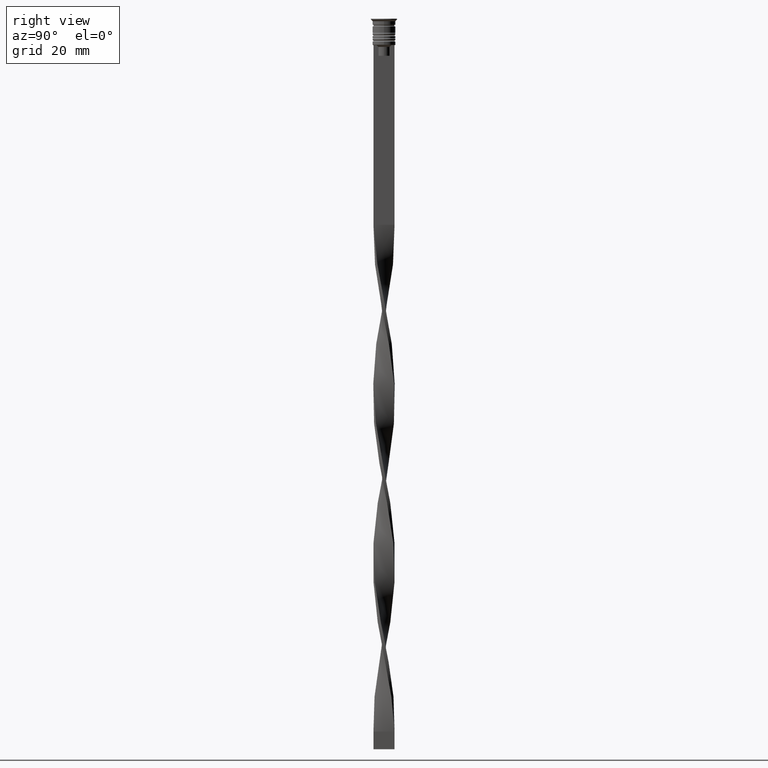
[diagram: clean part render]
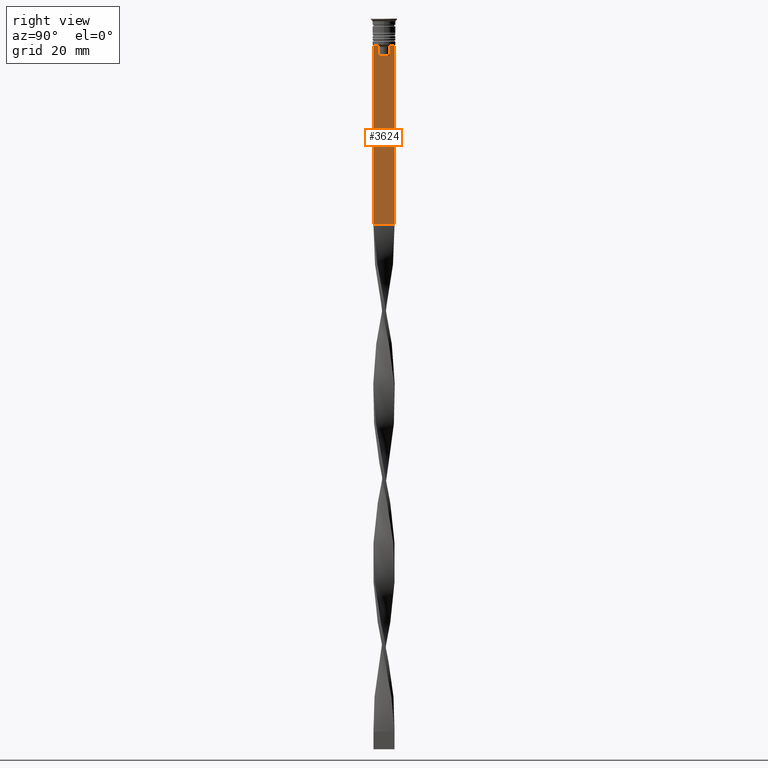
[diagram: same view with one face highlighted and labeled with its STEP entity id]
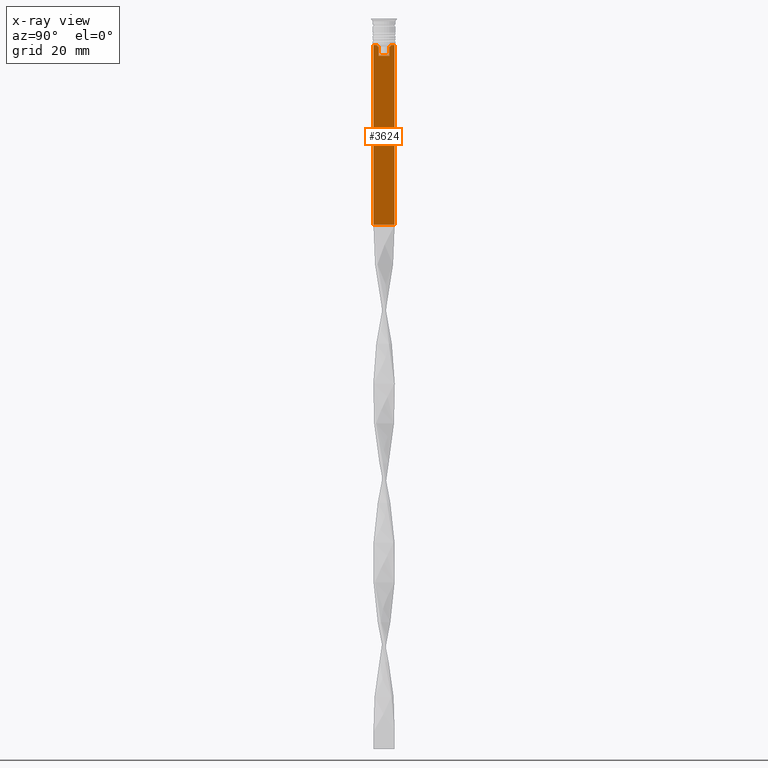
[diagram: x-ray of the same camera — body ghosted, the highlighted face saturated]
A machine part, right view. The second image highlights one B-rep face of the part: STEP entity #3624.
The next image is the same camera in x-ray: the body ghosted, the highlighted face saturated — about 0% of this face is hidden behind the body in this view.
In plain terms, the highlighted planar face has unit normal (-1, 0, 0).
Its self-contained STEP definition (entity closure, byte-faithful):
#65 = CARTESIAN_POINT ( 'NONE',  ( 0.4999999999999998890, -1.918909712772151721, -7.667422931978337353 ) ) ;
#67 = EDGE_CURVE ( 'NONE', #1737, #1102, #1024, .T. ) ;
#68 = LINE ( 'NONE', #2399, #1947 ) ;
#101 = CARTESIAN_POINT ( 'NONE',  ( 0.4999999999999998890, 3.000000000000000000, -7.500000000000000000 ) ) ;
#109 = ORIENTED_EDGE ( 'NONE', *, *, #1498, .T. ) ;
#237 = CARTESIAN_POINT ( 'NONE',  ( 0.4999999999999998890, 1.746261636039131870, -7.834330826581080487 ) ) ;
#271 = EDGE_CURVE ( 'NONE', #642, #2561, #593, .T. ) ;
#370 = DIRECTION ( 'NONE',  ( 0.000000000000000000, -1.000000000000000000, 0.000000000000000000 ) ) ;
#385 = DIRECTION ( 'NONE',  ( 0.000000000000000000, 1.000000000000000000, 0.000000000000000000 ) ) ;
#457 = PLANE ( 'NONE',  #1288 ) ;
#562 = CARTESIAN_POINT ( 'NONE',  ( 0.4999999999999998890, 2.091052366632653481, -7.500000000000000000 ) ) ;
#593 = LINE ( 'NONE', #1739, #1555 ) ;
#642 = VERTEX_POINT ( 'NONE', #905 ) ;
#780 = ORIENTED_EDGE ( 'NONE', *, *, #271, .T. ) ;
#854 = CARTESIAN_POINT ( 'NONE',  ( 0.4999999999999998890, -1.572418519351642452, -8.000000000000000000 ) ) ;
#905 = CARTESIAN_POINT ( 'NONE',  ( 0.4999999999999998890, -1.572418519351642452, -10.49999999999999822 ) ) ;
#1006 = LINE ( 'NONE', #2382, #2967 ) ;
#1020 = LINE ( 'NONE', #1055, #1750 ) ;
#1024 = LINE ( 'NONE', #1060, #1613 ) ;
#1054 = VERTEX_POINT ( 'NONE', #562 ) ;
#1055 = CARTESIAN_POINT ( 'NONE',  ( 0.4999999999999998890, 1.572418519351642452, 0.000000000000000000 ) ) ;
#1060 = CARTESIAN_POINT ( 'NONE',  ( 0.4999999999999998890, -3.000000000000000000, -1.417237469701779329 ) ) ;
#1061 = CARTESIAN_POINT ( 'NONE',  ( 0.4999999999999998890, -3.000000000000000000, -1.417237469701779329 ) ) ;
#1102 = VERTEX_POINT ( 'NONE', #2659 ) ;
#1110 = EDGE_CURVE ( 'NONE', #1479, #642, #1006, .T. ) ;
#1139 = CARTESIAN_POINT ( 'NONE',  ( 0.4999999999999998890, -1.572418519351642452, -8.000000000000000000 ) ) ;
#1270 = VECTOR ( 'NONE', #385, 1000.000000000000000 ) ;
#1288 = AXIS2_PLACEMENT_3D ( 'NONE', #1061, #1623, #2982 ) ;
#1300 = ORIENTED_EDGE ( 'NONE', *, *, #1110, .T. ) ;
#1316 = VERTEX_POINT ( 'NONE', #1383 ) ;
#1383 = CARTESIAN_POINT ( 'NONE',  ( 0.4999999999999998890, 1.572418519351642452, -8.000000000000000000 ) ) ;
#1479 = VERTEX_POINT ( 'NONE', #1741 ) ;
#1498 = EDGE_CURVE ( 'NONE', #2561, #2121, #3643, .T. ) ;
#1532 = LINE ( 'NONE', #2677, #1770 ) ;
#1544 = ORIENTED_EDGE ( 'NONE', *, *, #2178, .T. ) ;
#1555 = VECTOR ( 'NONE', #2235, 1000.000000000000000 ) ;
#1576 = DIRECTION ( 'NONE',  ( 0.000000000000000000, -1.000000000000000000, 0.000000000000000000 ) ) ;
#1610 = EDGE_CURVE ( 'NONE', #3370, #1916, #3470, .T. ) ;
#1613 = VECTOR ( 'NONE', #1640, 1000.000000000000000 ) ;
#1623 = DIRECTION ( 'NONE',  ( -1.000000000000000000, 0.000000000000000000, 0.000000000000000000 ) ) ;
#1637 = ORIENTED_EDGE ( 'NONE', *, *, #3390, .T. ) ;
#1640 = DIRECTION ( 'NONE',  ( 0.000000000000000000, 0.000000000000000000, -1.000000000000000000 ) ) ;
#1651 = ORIENTED_EDGE ( 'NONE', *, *, #3489, .T. ) ;
#1705 = EDGE_CURVE ( 'NONE', #1316, #1479, #1020, .T. ) ;
#1737 = VERTEX_POINT ( 'NONE', #2846 ) ;
#1739 = CARTESIAN_POINT ( 'NONE',  ( 0.4999999999999998890, -1.572418519351642452, 0.000000000000000000 ) ) ;
#1741 = CARTESIAN_POINT ( 'NONE',  ( 0.4999999999999998890, 1.572418519351642452, -10.49999999999999822 ) ) ;
#1750 = VECTOR ( 'NONE', #2484, 1000.000000000000000 ) ;
#1761 = CARTESIAN_POINT ( 'NONE',  ( 0.4999999999999998890, -2.091052366632653481, -7.500000000000000000 ) ) ;
#1770 = VECTOR ( 'NONE', #2964, 1000.000000000000000 ) ;
#1829 = DIRECTION ( 'NONE',  ( 0.000000000000000000, 0.000000000000000000, -1.000000000000000000 ) ) ;
#1853 = ORIENTED_EDGE ( 'NONE', *, *, #3066, .T. ) ;
#1898 = ORIENTED_EDGE ( 'NONE', *, *, #1705, .T. ) ;
#1916 = VERTEX_POINT ( 'NONE', #3549 ) ;
#1947 = VECTOR ( 'NONE', #370, 1000.000000000000000 ) ;
#2121 = VERTEX_POINT ( 'NONE', #2857 ) ;
#2178 = EDGE_CURVE ( 'NONE', #1102, #1916, #2709, .T. ) ;
#2235 = DIRECTION ( 'NONE',  ( -0.000000000000000000, -0.000000000000000000, 1.000000000000000000 ) ) ;
#2256 = ORIENTED_EDGE ( 'NONE', *, *, #67, .T. ) ;
#2340 = CARTESIAN_POINT ( 'NONE',  ( 0.4999999999999998890, 3.000000000000000000, -1.417237469701779329 ) ) ;
#2375 = CARTESIAN_POINT ( 'NONE',  ( 0.4999999999999998890, -3.000000000000000000, -58.50000000000000000 ) ) ;
#2382 = CARTESIAN_POINT ( 'NONE',  ( 0.4999999999999998890, 1.650000000000003464, -10.49999999999999822 ) ) ;
#2399 = CARTESIAN_POINT ( 'NONE',  ( 0.4999999999999998890, -3.000000000000000000, -7.500000000000000000 ) ) ;
#2484 = DIRECTION ( 'NONE',  ( 0.000000000000000000, 0.000000000000000000, -1.000000000000000000 ) ) ;
#2561 = VERTEX_POINT ( 'NONE', #854 ) ;
#2659 = CARTESIAN_POINT ( 'NONE',  ( 0.4999999999999998890, -3.000000000000000000, -58.50000000000000000 ) ) ;
#2677 = CARTESIAN_POINT ( 'NONE',  ( 0.4999999999999998890, -3.000000000000000000, -7.500000000000000000 ) ) ;
#2709 = LINE ( 'NONE', #2375, #1270 ) ;
#2770 = CARTESIAN_POINT ( 'NONE',  ( 0.4999999999999998890, 2.091052366632653481, -7.500000000000000000 ) ) ;
#2846 = CARTESIAN_POINT ( 'NONE',  ( 0.4999999999999998890, -3.000000000000000000, -7.500000000000000000 ) ) ;
#2857 = CARTESIAN_POINT ( 'NONE',  ( 0.4999999999999998890, -2.091052366632653481, -7.500000000000000000 ) ) ;
#2888 = B_SPLINE_CURVE_WITH_KNOTS ( 'NONE', 3,
 ( #2770, #3007, #237, #3591 ),
 .UNSPECIFIED., .F., .F.,
 ( 4, 4 ),
 ( 0.003696428037903523069, 0.004416830248125226156 ),
 .UNSPECIFIED. ) ;
#2964 = DIRECTION ( 'NONE',  ( 0.000000000000000000, -1.000000000000000000, 0.000000000000000000 ) ) ;
#2967 = VECTOR ( 'NONE', #1576, 1000.000000000000000 ) ;
#2982 = DIRECTION ( 'NONE',  ( 0.000000000000000000, 0.000000000000000000, 1.000000000000000000 ) ) ;
#3007 = CARTESIAN_POINT ( 'NONE',  ( 0.4999999999999998890, 1.918907889994530436, -7.667424704779945976 ) ) ;
#3051 = FACE_OUTER_BOUND ( 'NONE', #3585, .T. ) ;
#3066 = EDGE_CURVE ( 'NONE', #1054, #1316, #2888, .T. ) ;
#3097 = ORIENTED_EDGE ( 'NONE', *, *, #1610, .F. ) ;
#3262 = VECTOR ( 'NONE', #1829, 1000.000000000000000 ) ;
#3370 = VERTEX_POINT ( 'NONE', #101 ) ;
#3390 = EDGE_CURVE ( 'NONE', #3370, #1054, #1532, .T. ) ;
#3405 = CARTESIAN_POINT ( 'NONE',  ( 0.4999999999999998890, -1.746240429054158660, -7.834351036433149673 ) ) ;
#3470 = LINE ( 'NONE', #2340, #3262 ) ;
#3489 = EDGE_CURVE ( 'NONE', #2121, #1737, #68, .T. ) ;
#3549 = CARTESIAN_POINT ( 'NONE',  ( 0.4999999999999998890, 3.000000000000000000, -58.50000000000000000 ) ) ;
#3585 = EDGE_LOOP ( 'NONE', ( #1637, #1853, #1898, #1300, #780, #109, #1651, #2256, #1544, #3097 ) ) ;
#3591 = CARTESIAN_POINT ( 'NONE',  ( 0.4999999999999998890, 1.572418519351642452, -8.000000000000000000 ) ) ;
#3624 = ADVANCED_FACE ( 'NONE', ( #3051 ), #457, .F. ) ;
#3643 = B_SPLINE_CURVE_WITH_KNOTS ( 'NONE', 3,
 ( #1139, #3405, #65, #1761 ),
 .UNSPECIFIED., .F., .F.,
 ( 4, 4 ),
 ( 0.008356915209744729747, 0.009073319521387651632 ),
 .UNSPECIFIED. ) ;